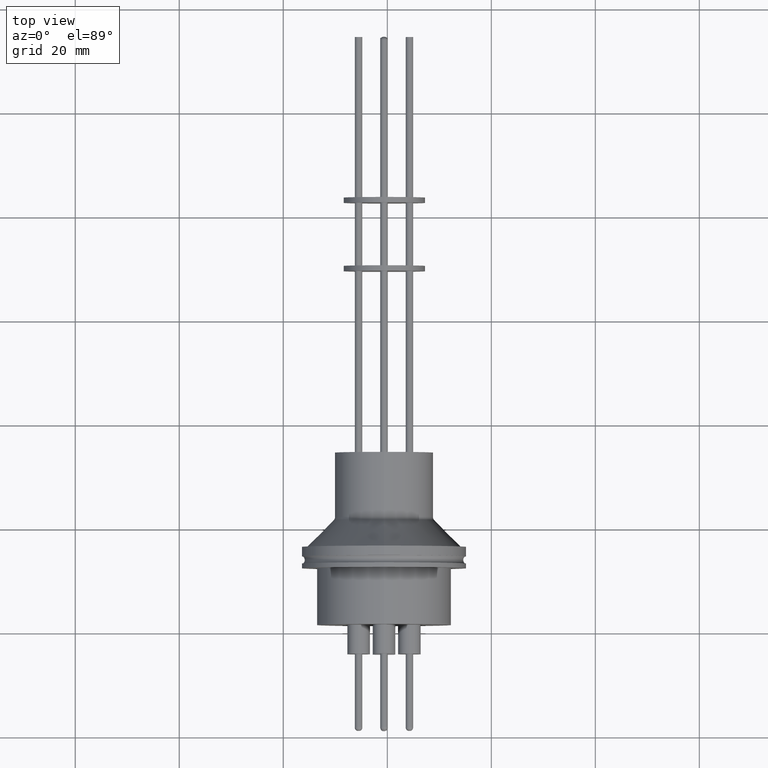
[diagram: clean part render]
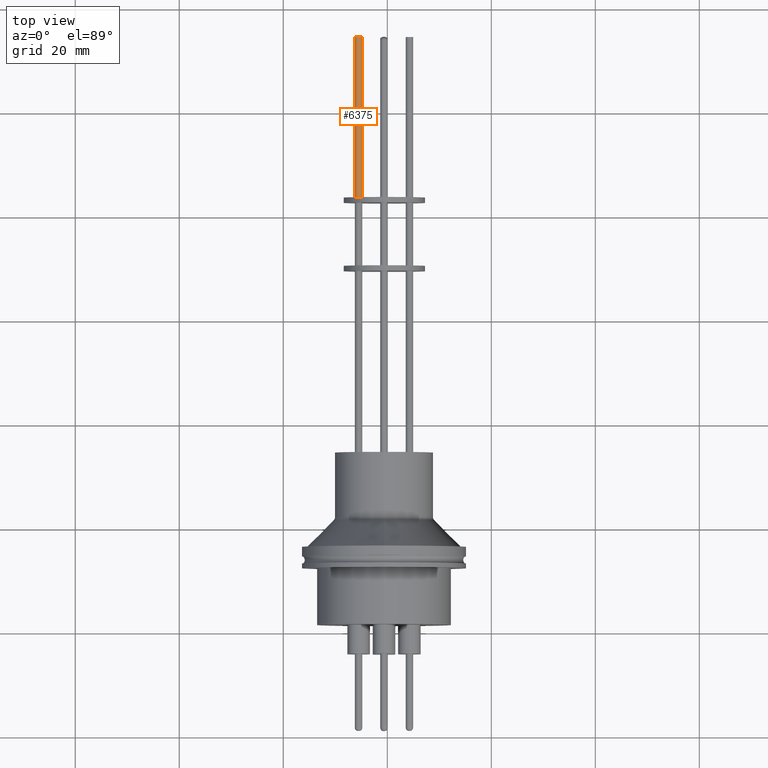
[diagram: same view with one face highlighted and labeled with its STEP entity id]
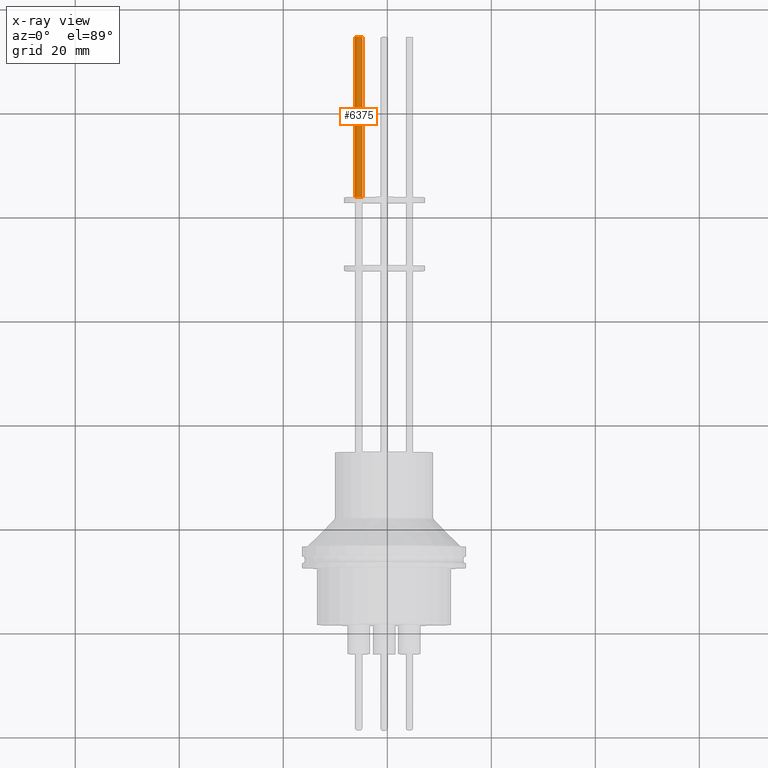
[diagram: x-ray of the same camera — body ghosted, the highlighted face saturated]
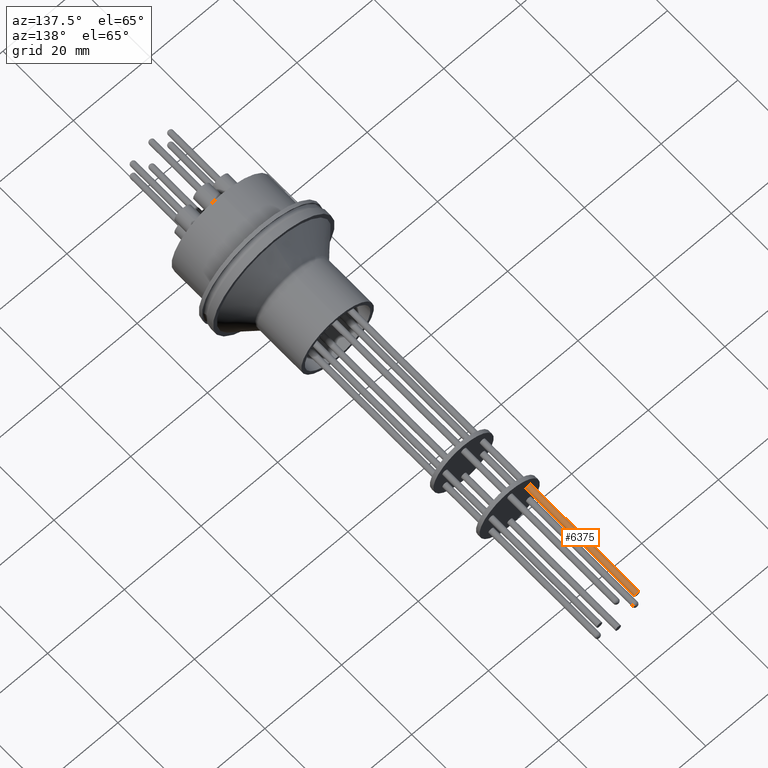
[diagram: same view with one face highlighted and labeled with its STEP entity id]
A machine part, top view. The second image highlights one B-rep face of the part: STEP entity #6375.
The next image is the same camera in x-ray: the body ghosted, the highlighted face saturated — about 0% of this face is hidden behind the body in this view.
A second angle (auxiliary view) of the same face is appended — the face is thin or edge-on in the first view.
In plain terms, the highlighted cylindrical surface (edge-blend (fillet) strip) has radius 0.7112 mm, axis along (-0, -1, -0).
Its self-contained STEP definition (entity closure, byte-faithful):
#222 = DIRECTION ( 'NONE',  ( 1.000000000000000000, 0.0000000000000000000, 0.0000000000000000000 ) ) ;
#224 = DIRECTION ( 'NONE',  ( -2.006723214947124800E-015, -1.000000000000000000, -1.224606353822385400E-016 ) ) ;
#226 = CARTESIAN_POINT ( 'NONE',  ( -0.2174281652228140000, 4.505306094244423900, 0.1111562825000023500 ) ) ;
#300 = AXIS2_PLACEMENT_3D ( 'NONE', #226, #224, #222 ) ;
#1254 = AXIS2_PLACEMENT_3D ( 'NONE', #5835, #5833, #5832 ) ;
#1266 = AXIS2_PLACEMENT_3D ( 'NONE', #5831, #5830, #5829 ) ;
#1514 = VERTEX_POINT ( 'NONE', #6118 ) ;
#1634 = VERTEX_POINT ( 'NONE', #5941 ) ;
#1702 = VERTEX_POINT ( 'NONE', #5873 ) ;
#1726 = VERTEX_POINT ( 'NONE', #5848 ) ;
#1863 = EDGE_LOOP ( 'NONE', ( #2082, #2083, #2084, #2085 ) ) ;
#2082 = ORIENTED_EDGE ( 'NONE', *, *, #2864, .T. ) ;
#2083 = ORIENTED_EDGE ( 'NONE', *, *, #2865, .T. ) ;
#2084 = ORIENTED_EDGE ( 'NONE', *, *, #2866, .F. ) ;
#2085 = ORIENTED_EDGE ( 'NONE', *, *, #4415, .F. ) ;
#2864 = EDGE_CURVE ( 'NONE', #1702, #1514, #7041, .T. ) ;
#2865 = EDGE_CURVE ( 'NONE', #1514, #1634, #7039, .T. ) ;
#2866 = EDGE_CURVE ( 'NONE', #1726, #1634, #7036, .T. ) ;
#3867 = CARTESIAN_POINT ( 'NONE',  ( -0.1894281652228138000, 4.505306094244423900, 0.1111562825000023500 ) ) ;
#3883 = DIRECTION ( 'NONE',  ( -2.006723214947124800E-015, -1.000000000000000000, -1.224606353822385400E-016 ) ) ;
#4415 = EDGE_CURVE ( 'NONE', #1702, #1726, #6404, .T. ) ;
#5829 = DIRECTION ( 'NONE',  ( 1.000000000000000000, 0.0000000000000000000, 0.0000000000000000000 ) ) ;
#5830 = DIRECTION ( 'NONE',  ( -2.006723214947124800E-015, -1.000000000000000000, -1.224606353822385400E-016 ) ) ;
#5831 = CARTESIAN_POINT ( 'NONE',  ( -0.2174281652228164400, 3.291458398179453400, 0.1111562825000021900 ) ) ;
#5832 = DIRECTION ( 'NONE',  ( 1.000000000000000000, 0.0000000000000000000, 0.0000000000000000000 ) ) ;
#5833 = DIRECTION ( 'NONE',  ( -2.006723214947124800E-015, -1.000000000000000000, -1.224606353822385400E-016 ) ) ;
#5835 = CARTESIAN_POINT ( 'NONE',  ( -0.2174281652228140000, 4.505306094244423900, 0.1111562825000023500 ) ) ;
#5836 = CARTESIAN_POINT ( 'NONE',  ( -0.2454281652228141900, 4.505306094244423900, 0.1111562825000023500 ) ) ;
#5840 = DIRECTION ( 'NONE',  ( -2.006723214947124800E-015, -1.000000000000000000, -1.224606353822385400E-016 ) ) ;
#5848 = CARTESIAN_POINT ( 'NONE',  ( -0.1894281652228162500, 3.291458398179453400, 0.1111562825000021900 ) ) ;
#5873 = CARTESIAN_POINT ( 'NONE',  ( -0.1894281652228138000, 4.505306094244423900, 0.1111562825000023500 ) ) ;
#5941 = CARTESIAN_POINT ( 'NONE',  ( -0.2454281652228166000, 3.291458398179453400, 0.1111562825000022600 ) ) ;
#6118 = CARTESIAN_POINT ( 'NONE',  ( -0.2454281652228141900, 4.505306094244423900, 0.1111562825000022600 ) ) ;
#6294 = CYLINDRICAL_SURFACE ( 'NONE', #300, 0.02800000000000018800 ) ;
#6302 = FACE_OUTER_BOUND ( 'NONE', #1863, .T. ) ;
#6375 = ADVANCED_FACE ( 'NONE', ( #6302 ), #6294, .T. ) ;
#6399 = VECTOR ( 'NONE', #3883, 39.37007874015748100 ) ;
#6404 = LINE ( 'NONE', #3867, #6399 ) ;
#7035 = VECTOR ( 'NONE', #5840, 39.37007874015748100 ) ;
#7036 = CIRCLE ( 'NONE', #1266, 0.02800000000000018800 ) ;
#7039 = LINE ( 'NONE', #5836, #7035 ) ;
#7041 = CIRCLE ( 'NONE', #1254, 0.02800000000000018800 ) ;